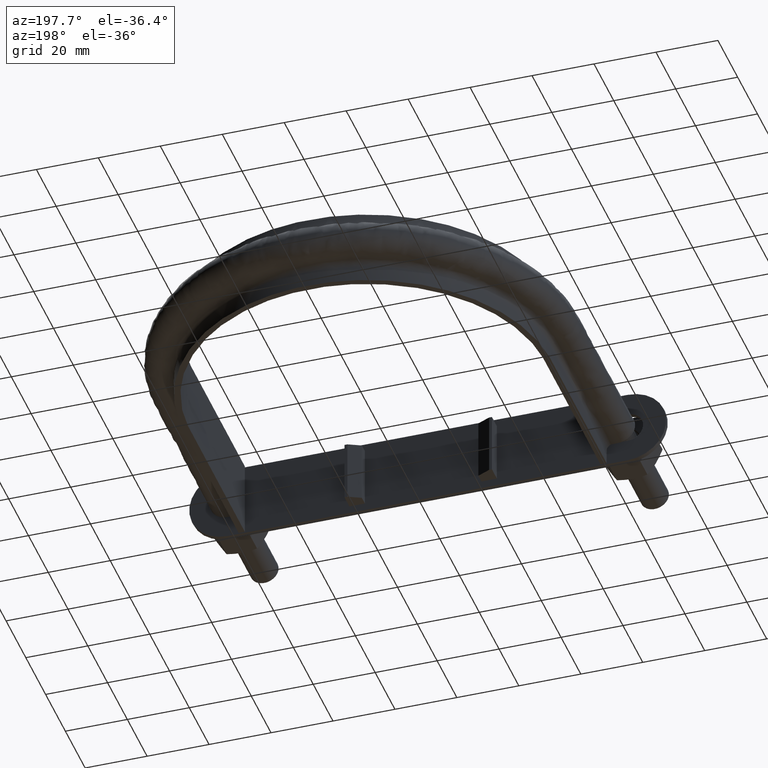
[diagram: clean part render]
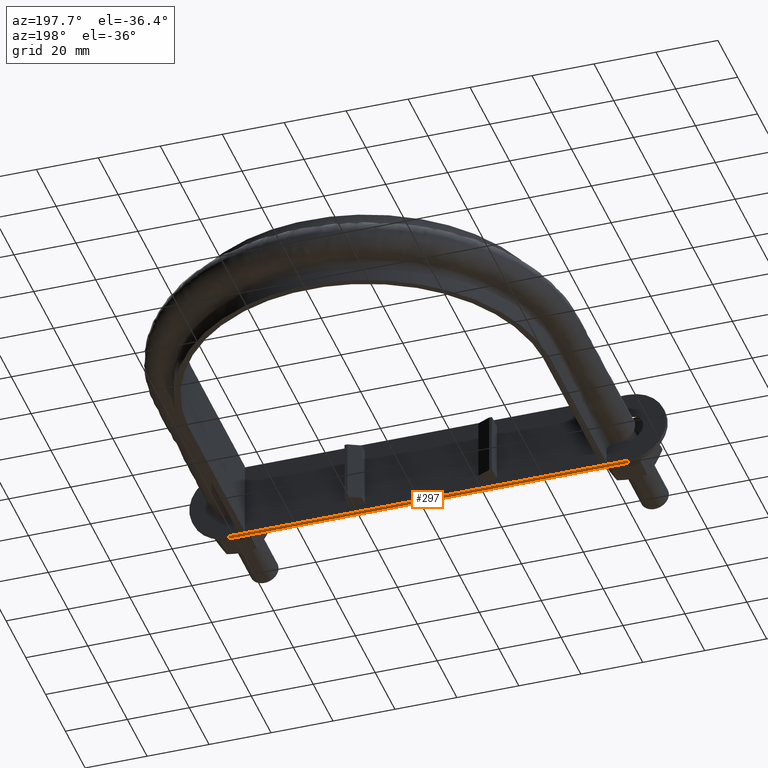
[diagram: same view with one face highlighted and labeled with its STEP entity id]
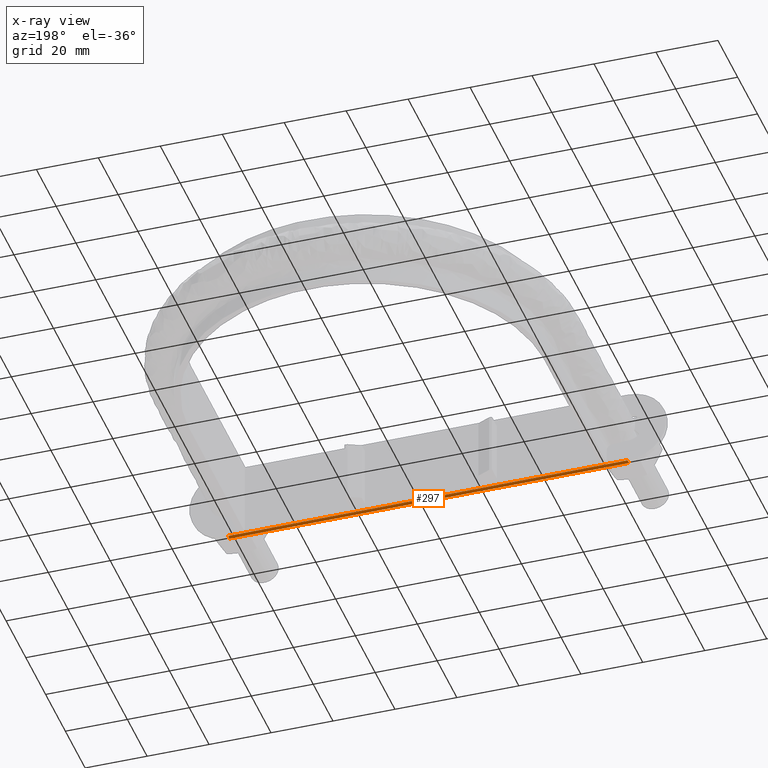
[diagram: x-ray of the same camera — body ghosted, the highlighted face saturated]
A machine part, auxiliary view. The second image highlights one B-rep face of the part: STEP entity #297.
The next image is the same camera in x-ray: the body ghosted, the highlighted face saturated — about 0% of this face is hidden behind the body in this view.
In plain terms, the highlighted planar face has unit normal (-0, 0, -1).
Its self-contained STEP definition (entity closure, byte-faithful):
#297 = ADVANCED_FACE( '', ( #449 ), #450, .T. );
#449 = FACE_OUTER_BOUND( '', #1352, .T. );
#450 = PLANE( '', #1353 );
#1352 = EDGE_LOOP( '', ( #1736, #1737, #1738, #1739 ) );
#1353 = AXIS2_PLACEMENT_3D( '', #1740, #1741, #1742 );
#1736 = ORIENTED_EDGE( '', *, *, #2380, .F. );
#1737 = ORIENTED_EDGE( '', *, *, #2394, .F. );
#1738 = ORIENTED_EDGE( '', *, *, #2395, .T. );
#1739 = ORIENTED_EDGE( '', *, *, #2396, .T. );
#1740 = CARTESIAN_POINT( '', ( 62.9999999998740, 35.3000000000000, -12.5000000006347 ) );
#1741 = DIRECTION( '', ( -1.00743302589043E-011, 5.34725563500696E-016, -1.00000000000000 ) );
#1742 = DIRECTION( '', ( -1.00000000000000, -8.63895740555212E-043, 1.00743302589043E-011 ) );
#2380 = EDGE_CURVE( '', #2642, #2637, #2644, .T. );
#2394 = EDGE_CURVE( '', #2671, #2642, #2672, .T. );
#2395 = EDGE_CURVE( '', #2671, #2673, #2674, .T. );
#2396 = EDGE_CURVE( '', #2673, #2637, #2675, .T. );
#2637 = VERTEX_POINT( '', #3261 );
#2642 = VERTEX_POINT( '', #3267 );
#2644 = LINE( '', #3269, #3270 );
#2671 = VERTEX_POINT( '', #3307 );
#2672 = LINE( '', #3308, #3309 );
#2673 = VERTEX_POINT( '', #3310 );
#2674 = LINE( '', #3311, #3312 );
#2675 = LINE( '', #3313, #3314 );
#3261 = CARTESIAN_POINT( '', ( -66.0000000001260, 36.8000000000000, -12.4999999993351 ) );
#3267 = CARTESIAN_POINT( '', ( 62.9999999998741, 36.8000000000000, -12.5000000006347 ) );
#3269 = CARTESIAN_POINT( '', ( -66.0000000001259, 36.8000000000000, -12.4999999993351 ) );
#3270 = VECTOR( '', #3870, 1000.00000000000 );
#3307 = CARTESIAN_POINT( '', ( 62.9999999998741, 35.3000000000000, -12.5000000006347 ) );
#3308 = CARTESIAN_POINT( '', ( 62.9999999998741, 35.3000000000000, -12.5000000006347 ) );
#3309 = VECTOR( '', #3890, 1000.00000000000 );
#3310 = CARTESIAN_POINT( '', ( -66.0000000001260, 35.3000000000000, -12.4999999993351 ) );
#3311 = CARTESIAN_POINT( '', ( 62.9999999998740, 35.3000000000000, -12.5000000006347 ) );
#3312 = VECTOR( '', #3891, 1000.00000000000 );
#3313 = CARTESIAN_POINT( '', ( -66.0000000001260, 35.3000000000000, -12.4999999993351 ) );
#3314 = VECTOR( '', #3892, 1000.00000000000 );
#3870 = DIRECTION( '', ( -1.00000000000000, -5.38700058195641E-027, 1.00743302589043E-011 ) );
#3890 = DIRECTION( '', ( 2.51087312473002E-018, 1.00000000000000, 5.34725563500670E-016 ) );
#3891 = DIRECTION( '', ( -1.00000000000000, -5.38700058195641E-027, 1.00743302589043E-011 ) );
#3892 = DIRECTION( '', ( 2.51087312473002E-018, 1.00000000000000, 5.34725563500670E-016 ) );